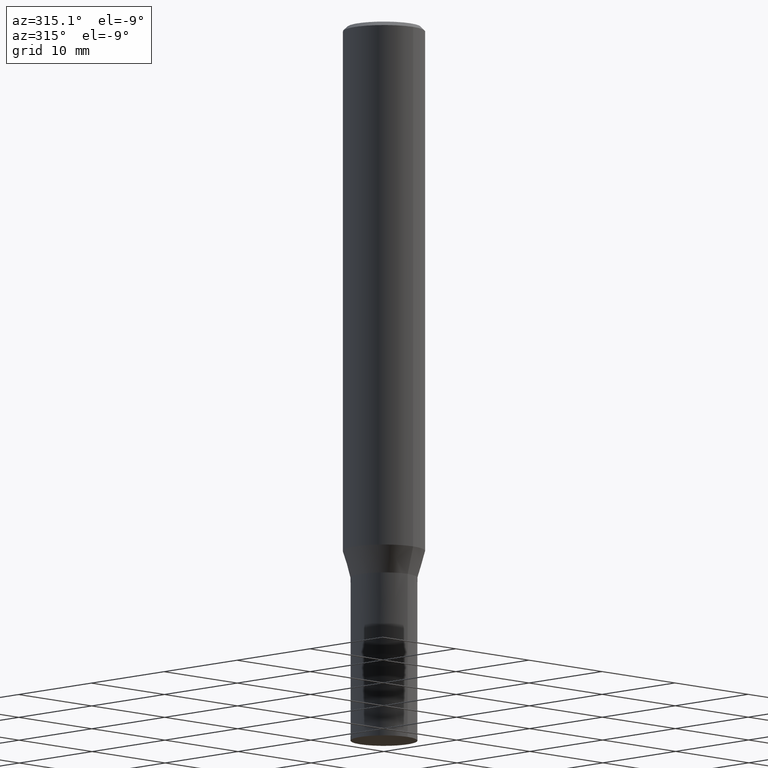
[diagram: clean part render]
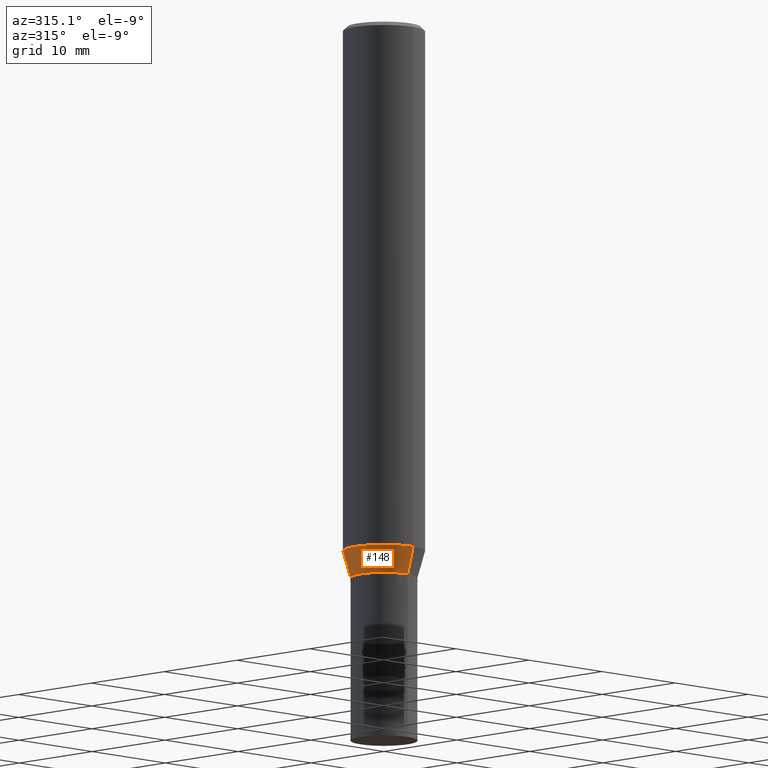
[diagram: same view with one face highlighted and labeled with its STEP entity id]
A machine part, auxiliary view. The second image highlights one B-rep face of the part: STEP entity #148.
In plain terms, the highlighted conical surface has half-angle 15.997 deg.
Its self-contained STEP definition (entity closure, byte-faithful):
#88=VERTEX_POINT('',#209);
#104=EDGE_CURVE('',#128,#88,#229,.T.);
#122=VERTEX_POINT('',#248);
#128=VERTEX_POINT('',#256);
#130=VERTEX_POINT('',#258);
#146=EDGE_CURVE('',#122,#128,#276,.T.);
#148=ADVANCED_FACE('',(#278),#279,.T.);
#156=EDGE_CURVE('',#130,#88,#288,.T.);
#166=EDGE_CURVE('',#130,#122,#300,.T.);
#209=CARTESIAN_POINT('',(0.0,3.24995,-54.0));
#229=LINE('',#364,#365);
#248=CARTESIAN_POINT('',(4.89836418497182E-016,-3.99995,-51.384));
#256=CARTESIAN_POINT('',(0.0,3.99995,-51.384));
#258=CARTESIAN_POINT('',(3.97990941960504E-016,-3.24995,-54.0));
#276=CIRCLE('',#421,3.99995);
#278=FACE_OUTER_BOUND('',#423,.T.);
#279=CONICAL_SURFACE('',#424,3.62495,0.279208199033747);
#288=CIRCLE('',#437,3.24995);
#300=LINE('',#451,#452);
#364=CARTESIAN_POINT('',(-4.43913680228843E-016,3.62495,-52.692));
#365=VECTOR('',#504,1.0);
#421=AXIS2_PLACEMENT_3D('',#555,#556,#557);
#423=EDGE_LOOP('',(#559,#560,#561,#562));
#424=AXIS2_PLACEMENT_3D('',#563,#564,#565);
#437=AXIS2_PLACEMENT_3D('',#576,#577,#578);
#451=CARTESIAN_POINT('',(4.43913680228843E-016,-3.62495,-52.692));
#452=VECTOR('',#598,1.0);
#504=DIRECTION('',(3.37494895041124E-017,-0.275594597388538,-0.961273955691222));
#555=CARTESIAN_POINT('',(0.0,0.0,-51.384));
#556=DIRECTION('',(0.0,0.0,-1.0));
#557=DIRECTION('',(0.0,1.0,0.0));
#559=ORIENTED_EDGE('',*,*,#104,.T.);
#560=ORIENTED_EDGE('',*,*,#156,.F.);
#561=ORIENTED_EDGE('',*,*,#166,.T.);
#562=ORIENTED_EDGE('',*,*,#146,.T.);
#563=CARTESIAN_POINT('',(0.0,0.0,-52.692));
#564=DIRECTION('',(-0.0,-0.0,1.0));
#565=DIRECTION('',(0.0,1.0,0.0));
#576=CARTESIAN_POINT('',(0.0,0.0,-54.0));
#577=DIRECTION('',(0.0,0.0,-1.0));
#578=DIRECTION('',(0.0,1.0,0.0));
#598=DIRECTION('',(3.37494895041124E-017,-0.275594597388538,0.961273955691222));